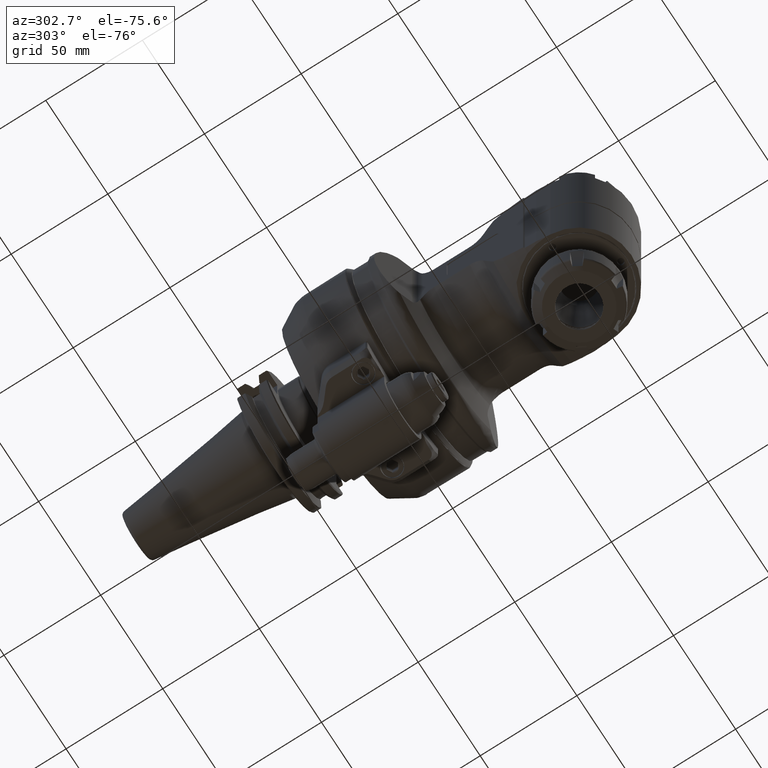
[diagram: clean part render]
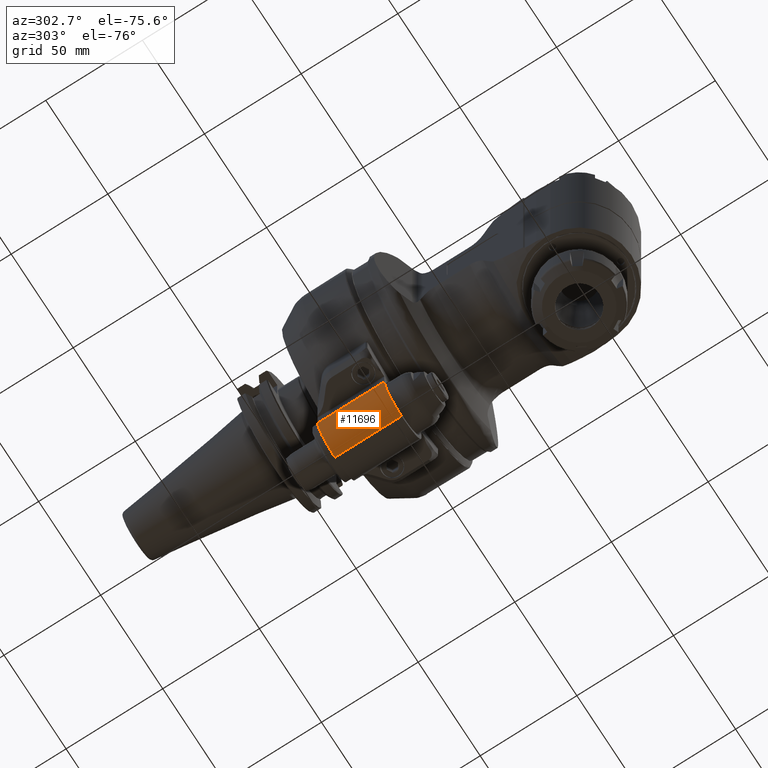
[diagram: same view with one face highlighted and labeled with its STEP entity id]
A machine part, auxiliary view. The second image highlights one B-rep face of the part: STEP entity #11696.
In plain terms, the highlighted cylindrical surface (edge-blend (fillet) strip) has radius 14 mm, axis along (0, -1, 0).
Its self-contained STEP definition (entity closure, byte-faithful):
#845=CYLINDRICAL_SURFACE('',#12974,0.551181102362205);
#1169=CIRCLE('',#12598,0.551181102362205);
#1197=CIRCLE('',#12644,0.551181102362205);
#2020=FACE_OUTER_BOUND('',#2797,.T.);
#2797=EDGE_LOOP('',(#9854,#9855,#9856,#9857));
#3358=LINE('',#19849,#4096);
#3542=LINE('',#22472,#4280);
#4096=VECTOR('',#15003,1.35826771653543);
#4280=VECTOR('',#15867,1.35826771653543);
#5022=VERTEX_POINT('',#19501);
#5023=VERTEX_POINT('',#19503);
#5070=VERTEX_POINT('',#19847);
#5096=VERTEX_POINT('',#19900);
#6421=EDGE_CURVE('',#5022,#5023,#1169,.T.);
#6485=EDGE_CURVE('',#5022,#5070,#3358,.T.);
#6511=EDGE_CURVE('',#5096,#5070,#1197,.T.);
#6905=EDGE_CURVE('',#5096,#5023,#3542,.T.);
#9854=ORIENTED_EDGE('',*,*,#6905,.T.);
#9855=ORIENTED_EDGE('',*,*,#6421,.F.);
#9856=ORIENTED_EDGE('',*,*,#6485,.T.);
#9857=ORIENTED_EDGE('',*,*,#6511,.F.);
#11696=ADVANCED_FACE('',(#2020),#845,.T.);
#12598=AXIS2_PLACEMENT_3D('',#19504,#14897,#14898);
#12644=AXIS2_PLACEMENT_3D('',#19902,#15040,#15041);
#12974=AXIS2_PLACEMENT_3D('',#22473,#15868,#15869);
#14897=DIRECTION('center_axis',(0.,-1.,0.));
#14898=DIRECTION('ref_axis',(-1.,0.,0.));
#15003=DIRECTION('',(0.,1.,0.));
#15040=DIRECTION('center_axis',(0.,1.,0.));
#15041=DIRECTION('ref_axis',(0.,0.,-1.));
#15867=DIRECTION('',(0.,-1.,0.));
#15868=DIRECTION('center_axis',(0.,-1.,0.));
#15869=DIRECTION('ref_axis',(0.,0.,-1.));
#19501=CARTESIAN_POINT('',(-0.590551181102362,0.196850393700787,-2.63779527559055));
#19503=CARTESIAN_POINT('',(-0.0393700787401575,0.196850393700787,-3.18897637795276));
#19504=CARTESIAN_POINT('Origin',(-0.0393700787401575,0.196850393700787,
-2.63779527559055));
#19847=CARTESIAN_POINT('',(-0.590551181102362,1.55511811023622,-2.63779527559055));
#19849=CARTESIAN_POINT('',(-0.590551181102362,0.196850393700787,-2.63779527559055));
#19900=CARTESIAN_POINT('',(-0.0393700787401575,1.55511811023622,-3.18897637795276));
#19902=CARTESIAN_POINT('Origin',(-0.0393700787401575,1.55511811023622,-2.63779527559055));
#22472=CARTESIAN_POINT('',(-0.0393700787401575,1.55511811023622,-3.18897637795276));
#22473=CARTESIAN_POINT('Origin',(-0.0393700787401575,1.22047244094488,-2.63779527559055));